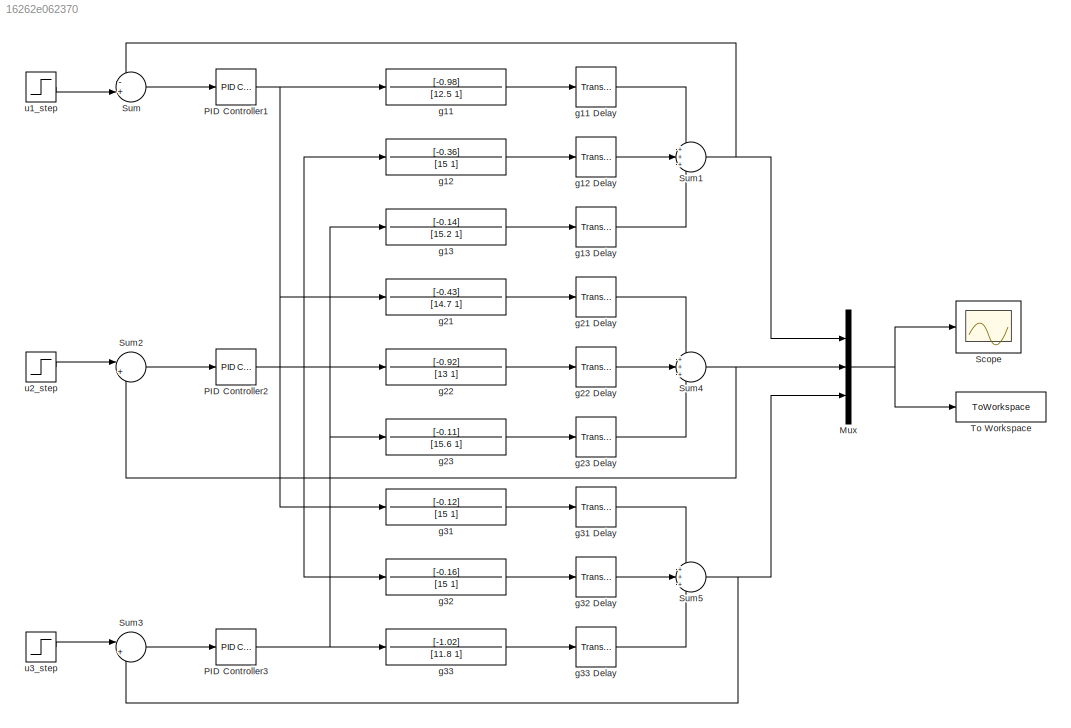
MODEL slx_16262e062370
KIND model
CONFIG AbsTol = auto
CONFIG EnableMultiTasking = off
CONFIG FixedStep = auto
CONFIG MaxStep = auto
CONFIG MinStep = auto
CONFIG RelTol = 1e-3
CONFIG SampleTimeConstraint = Unconstrained
CONFIG SolverName = VariableStepAuto
CONFIG StartTime = 0.0
CONFIG StopTime = 1500
BLOCK [Mux] Mux
  DisplayOption = bar
  Inputs = 3
  Ports = [3, 1]
BLOCK [Reference] PID Controller1  REF=pid_lib/PID Controller
  Ports = [1, 1]
  SourceBlock = pid_lib/PID Controller
  SourceProductBaseCode = SL
  SourceType = PID 1dof
BLOCK [Reference] PID Controller2  REF=pid_lib/PID Controller
  Ports = [1, 1]
  SourceBlock = pid_lib/PID Controller
  SourceProductBaseCode = SL
  SourceType = PID 1dof
BLOCK [Reference] PID Controller3  REF=pid_lib/PID Controller
  Ports = [1, 1]
  SourceBlock = pid_lib/PID Controller
  SourceProductBaseCode = SL
  SourceType = PID 1dof
BLOCK [Scope] Scope
  Floating = off
  NumInputPorts = 1
  Ports = [1]
  ScopeSpecificationString = Simulink.scopes.TimeScopeBlockCfg('CurrentConfiguration', extmgr.ConfigurationSet(extmgr.Configuration('Core','General UI',true),extmgr.Configuration('Core','Source UI',true),extmgr.Configuration('Sources','WiredSimulink',true),extmgr.Configuration('Visuals','Time Domain',true,'SerializedDisplays',{struct('MinYLimReal','-0.12524','MaxYLimReal','1.12715','YLabelReal','','MinYLimMag','0.00000','MaxY...<+1367ch>
BLOCK [Sum] Sum
  Inputs = -+|
  Ports = [2, 1]
BLOCK [Sum] Sum1
  Inputs = +++
  Ports = [3, 1]
BLOCK [Sum] Sum2
  Inputs = |+-
  Ports = [2, 1]
BLOCK [Sum] Sum3
  Inputs = |+-
  Ports = [2, 1]
BLOCK [Sum] Sum4
  Inputs = +++
  Ports = [3, 1]
BLOCK [Sum] Sum5
  Inputs = +++
  Ports = [3, 1]
BLOCK [ToWorkspace] To Workspace
  FixptAsFi = on
  MaxDataPoints = inf
  Ports = [1]
  SampleTime = -1
  SaveFormat = Timeseries
  VariableName = Decentralized_BLT
BLOCK [TransferFcn] g11
  Denominator = [12.5 1]
  Numerator = [-0.98]
BLOCK [TransportDelay] g11 Delay
  DelayTime = 17
  Ports = [1, 1]
BLOCK [TransferFcn] g12
  Denominator = [15 1]
  Numerator = [-0.36]
BLOCK [TransportDelay] g12 Delay
  DelayTime = 27
  Ports = [1, 1]
BLOCK [TransferFcn] g13
  Denominator = [15.2 1]
  Numerator = [-0.14]
BLOCK [TransportDelay] g13 Delay
  DelayTime = 32
  Ports = [1, 1]
BLOCK [TransferFcn] g21
  Denominator = [14.7 1]
  Numerator = [-0.43]
BLOCK [TransportDelay] g21 Delay
  DelayTime = 25
  Ports = [1, 1]
BLOCK [TransferFcn] g22
  Denominator = [13 1]
  Numerator = [-0.92]
BLOCK [TransportDelay] g22 Delay
  DelayTime = 16
  Ports = [1, 1]
BLOCK [TransferFcn] g23
  Denominator = [15.6 1]
  Numerator = [-0.11]
BLOCK [TransportDelay] g23 Delay
  DelayTime = 33
  Ports = [1, 1]
BLOCK [TransferFcn] g31
  Denominator = [15 1]
  Numerator = [-0.12]
BLOCK [TransportDelay] g31 Delay
  DelayTime = 31
  Ports = [1, 1]
BLOCK [TransferFcn] g32
  Denominator = [15 1]
  Numerator = [-0.16]
BLOCK [TransportDelay] g32 Delay
  DelayTime = 34
  Ports = [1, 1]
BLOCK [TransferFcn] g33
  Denominator = [11.8 1]
  Numerator = [-1.02]
BLOCK [TransportDelay] g33 Delay
  DelayTime = 16
  Ports = [1, 1]
BLOCK [Step] u1_step
  SampleTime = 0
  Time = 0
BLOCK [Step] u2_step
  SampleTime = 0
  Time = 50
BLOCK [Step] u3_step
  SampleTime = 0
  Time = 100
NET Mux:1 -> Scope:1, To Workspace:1
NET PID Controller1:1 -> g11:1, g21:1, g31:1
NET PID Controller2:1 -> g12:1, g22:1, g32:1
NET PID Controller3:1 -> g13:1, g23:1, g33:1
NET Sum1:1 -> Mux:1, Sum:1
LINE Sum2:1 -> PID Controller2:1
LINE Sum3:1 -> PID Controller3:1
NET Sum4:1 -> Mux:2, Sum2:2
NET Sum5:1 -> Mux:3, Sum3:2
LINE Sum:1 -> PID Controller1:1
LINE g11 Delay:1 -> Sum1:1
LINE g11:1 -> g11 Delay:1
LINE g12 Delay:1 -> Sum1:2
LINE g12:1 -> g12 Delay:1
LINE g13 Delay:1 -> Sum1:3
LINE g13:1 -> g13 Delay:1
LINE g21 Delay:1 -> Sum4:1
LINE g21:1 -> g21 Delay:1
LINE g22 Delay:1 -> Sum4:2
LINE g22:1 -> g22 Delay:1
LINE g23 Delay:1 -> Sum4:3
LINE g23:1 -> g23 Delay:1
LINE g31 Delay:1 -> Sum5:1
LINE g31:1 -> g31 Delay:1
LINE g32 Delay:1 -> Sum5:2
LINE g32:1 -> g32 Delay:1
LINE g33 Delay:1 -> Sum5:3
LINE g33:1 -> g33 Delay:1
LINE u1_step:1 -> Sum:2
LINE u2_step:1 -> Sum2:1
LINE u3_step:1 -> Sum3:1
note: NET lines group one-source signal fan-out (src -> all destinations, sorted); 1:1 wires keep LINE
